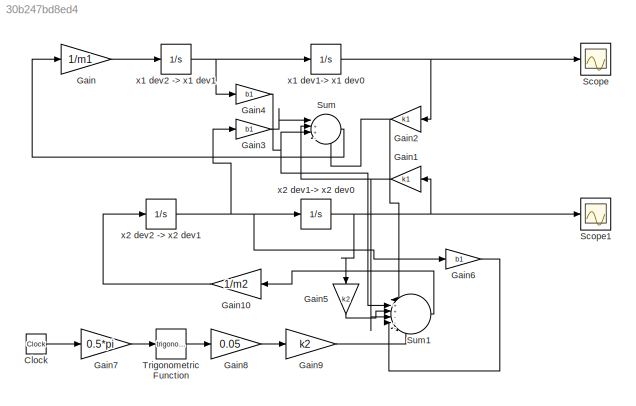
MODEL slx_30b247bd8ed4
KIND model
CONFIG AbsTol = auto
CONFIG EnableMultiTasking = off
CONFIG FixedStep = auto
CONFIG MaxStep = auto
CONFIG MinStep = auto
CONFIG RelTol = 1e-3
CONFIG SampleTimeConstraint = Unconstrained
CONFIG SolverName = VariableStepAuto
CONFIG StartTime = 0.0
CONFIG StopTime = 10
WORKSPACE source: mxarray member
WORKSPACE b1 = 1000
WORKSPACE m1 = 290
BLOCK [Clock] Clock
BLOCK [Gain] Gain
  Gain = 1/m1
BLOCK [Gain] Gain1
  Gain = k1
  NameLocation = top
BLOCK [Gain] Gain10
  Gain = 1/m2
  NameLocation = top
BLOCK [Gain] Gain2
  Gain = k1
  NameLocation = top
BLOCK [Gain] Gain3
  Gain = b1
BLOCK [Gain] Gain4
  Gain = b1
BLOCK [Gain] Gain5
  Gain = k2
  NameLocation = left
BLOCK [Gain] Gain6
  Gain = b1
BLOCK [Gain] Gain7
  Gain = 0.5*pi
BLOCK [Gain] Gain8
  Gain = 0.05
BLOCK [Gain] Gain9
  Gain = k2
BLOCK [Scope] Scope
  Floating = off
  NumInputPorts = 1
  ScopeSpecificationString = Simulink.scopes.TimeScopeBlockCfg('CurrentConfiguration', extmgr.ConfigurationSet(extmgr.Configuration('Core','General UI',true),extmgr.Configuration('Core','Source UI',true),extmgr.Configuration('Sources','WiredSimulink',true),extmgr.Configuration('Visuals','Time Domain',true,'SerializedDisplays',{struct('MinYLimReal','-0.00452','MaxYLimReal','0.00559','YLabelReal','','MinYLimMag','0.00000','MaxY...<+1366ch>
BLOCK [Scope] Scope1
  Floating = off
  NumInputPorts = 1
  ScopeSpecificationString = Simulink.scopes.TimeScopeBlockCfg('CurrentConfiguration', extmgr.ConfigurationSet(extmgr.Configuration('Core','General UI',true),extmgr.Configuration('Core','Source UI',true),extmgr.Configuration('Sources','WiredSimulink',true,'DataLoggingVariableName','ScopeData1'),extmgr.Configuration('Visuals','Time Domain',true,'SerializedDisplays',{struct('MinYLimReal','-0.00833','MaxYLimReal','0.01357','YLab...<+1404ch>
BLOCK [Sum] Sum
  Inputs = |++--
BLOCK [Sum] Sum1
  Inputs = |++---+
BLOCK [Trigonometry] Trigonometric Function
BLOCK [Integrator] x1 dev1-> x1 dev0
BLOCK [Integrator] x1 dev2 -> x1 dev1
BLOCK [Integrator] x2 dev1-> x2 dev0
BLOCK [Integrator] x2 dev2 -> x2 dev1
LINE Clock:1 -> Gain7:1
LINE Gain10:1 -> x2 dev2 -> x2 dev1:1
NET Gain1:1 -> Sum1:4, Sum:2
NET Gain2:1 -> Sum1:1, Sum:4
LINE Gain3:1 -> Sum:1
NET Gain4:1 -> Sum1:2, Sum:3
LINE Gain5:1 -> Sum1:3
LINE Gain6:1 -> Sum1:5
LINE Gain7:1 -> Trigonometric Function:1
LINE Gain8:1 -> Gain9:1
LINE Gain9:1 -> Sum1:6
LINE Gain:1 -> x1 dev2 -> x1 dev1:1
LINE Sum1:1 -> Gain10:1
LINE Sum:1 -> Gain:1
LINE Trigonometric Function:1 -> Gain8:1
NET x1 dev1-> x1 dev0:1 -> Gain2:1, Scope:1
NET x1 dev2 -> x1 dev1:1 -> Gain4:1, x1 dev1-> x1 dev0:1
NET x2 dev1-> x2 dev0:1 -> Gain1:1, Gain5:1, Scope1:1
NET x2 dev2 -> x2 dev1:1 -> Gain3:1, Gain6:1, x2 dev1-> x2 dev0:1
note: NET lines group one-source signal fan-out (src -> all destinations, sorted); 1:1 wires keep LINE
